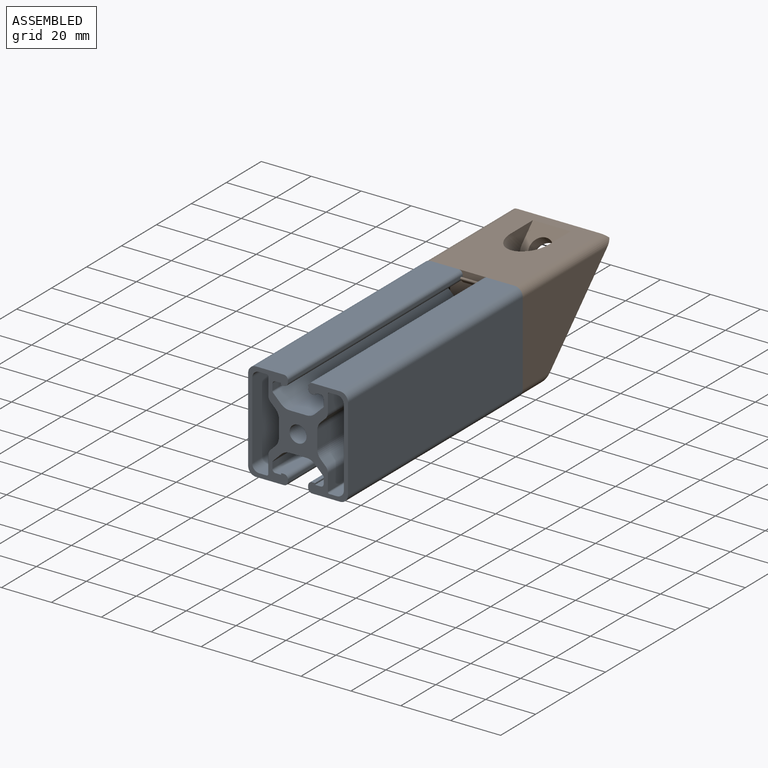
[diagram: assembled view]
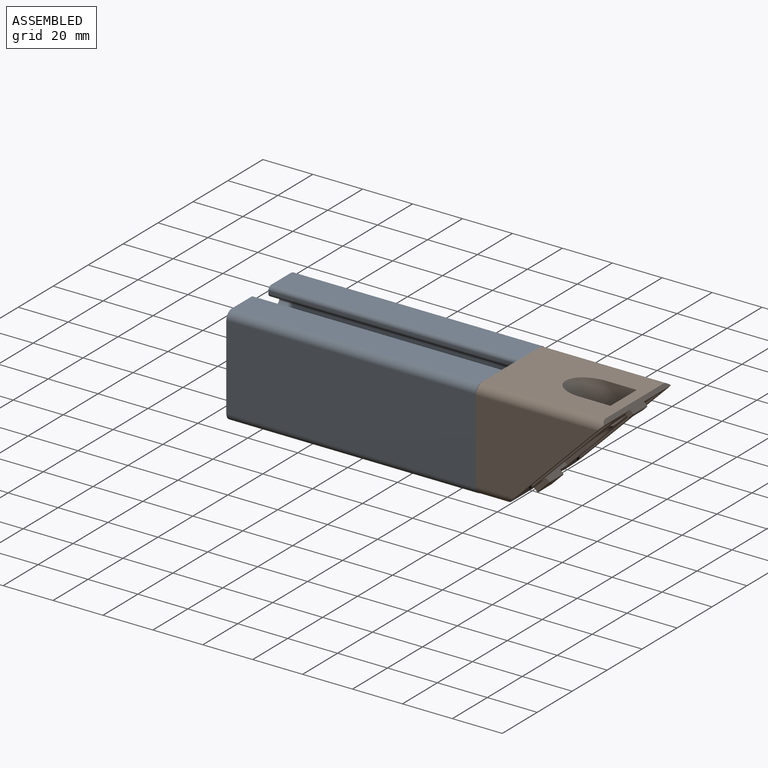
[diagram: assembled view, second angle]
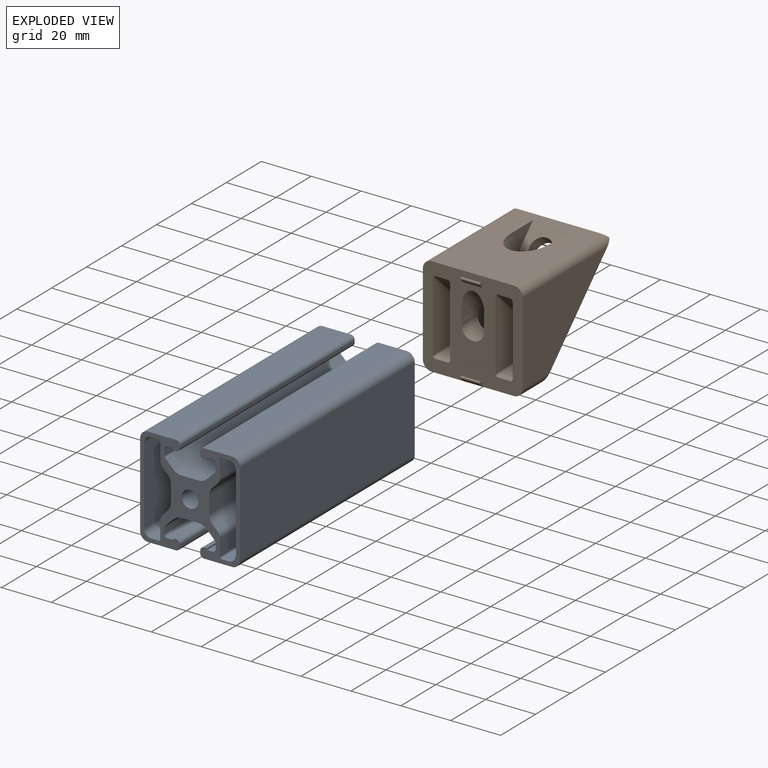
[diagram: exploded view]
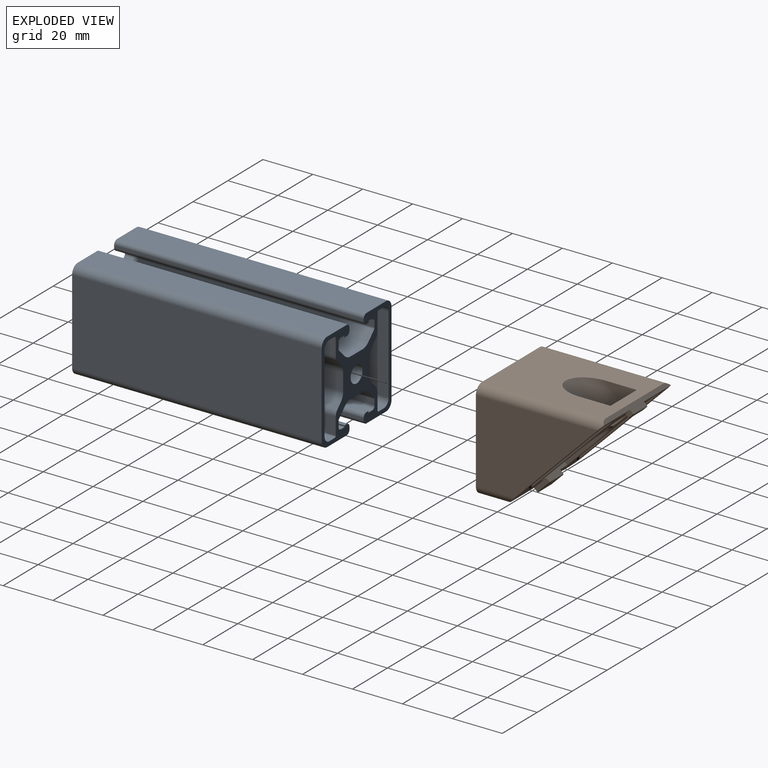
[diagram: exploded view, second angle]
ASSEMBLY  parts=2 mates=3
PART A: 91 faces, bbox 40x40x100 mm
  f0: plane 100x0.76mm, normal (1,0,0), area 76.2mm2, adj f1,f55,f56,f57
  f1: plane 100x2.12mm, normal (0,1,0), area 212.1mm2, adj f0,f2,f56,f57
  f2: cylinder r=1.27mm len=100mm, axis (0,0,1), area 199.5mm2, adj f1,f3,f56,f57
  f3: plane 100x2.48mm, normal (-1,0,0), area 248.4mm2, adj f2,f4,f56,f57
  f4: cylinder r=0.89mm len=100mm, axis (0,0,1), area 69.9mm2, adj f3,f5,f56,f57
  f5: plane 100x3.25mm, normal (-0.71,-0.71,0), area 459.3mm2, adj f4,f6,f56,f57
  f6: cylinder r=4.75mm len=100mm, axis (0,0,1), area 370.7mm2, adj f5,f7,f56,f57
  f7: plane 100x6.86mm, normal (0,-1,0), area 686.2mm2, adj f6,f8,f56,f57
  f8: cylinder r=4.75mm len=100mm, axis (0,0,1), area 370.7mm2, adj f7,f9,f56,f57
  f9: plane 100x3.25mm, normal (0.71,-0.71,0), area 459.3mm2, adj f8,f10,f56,f57
  f10: cylinder r=0.89mm len=100mm, axis (0,0,1), area 69.9mm2, adj f9,f11,f56,f57
  f11: plane 100x2.48mm, normal (1,0,0), area 248.4mm2, adj f10,f12,f56,f57
  f12: cylinder r=1.27mm len=100mm, axis (0,0,1), area 199.5mm2, adj f11,f13,f56,f57
  f13: plane 100x2.12mm, normal (0,1,0), area 212.1mm2, adj f12,f14,f56,f57
  f14: plane 100x0.76mm, normal (-1,0,0), area 76.2mm2, adj f13,f15,f56,f57
  f15: plane 100x1.26mm, normal (0,1,0), area 125.9mm2, adj f14,f16,f56,f57
  f16: cylinder r=1.57mm len=100mm, axis (0,0,1), area 247.4mm2, adj f15,f17,f56,f57
  f17: plane 100x0.91mm, normal (1,0,0), area 91mm2, adj f16,f18,f56,f57
  f18: cylinder r=1.57mm len=100mm, axis (0,0,1), area 247.4mm2, adj f17,f19,f56,f57
  f19: plane 100x11.19mm, normal (0,-1,0), area 1119mm2, adj f18,f20,f56,f57
  f20: cylinder r=3.17mm len=100mm, axis (0,0,1), area 498.7mm2, adj f19,f21,f56,f57
  f21: plane 100x33.65mm, normal (-1,0,0), area 3365mm2, adj f20,f22,f56,f57
  f22: cylinder r=3.17mm len=100mm, axis (0,0,1), area 498.7mm2, adj f21,f23,f56,f57
  f23: plane 100x11.19mm, normal (0,1,0), area 1119mm2, adj f22,f24,f56,f57
  f24: cylinder r=1.57mm len=100mm, axis (0,0,1), area 247.4mm2, adj f23,f25,f56,f57
  f25: plane 100x0.91mm, normal (1,0,0), area 91mm2, adj f24,f26,f56,f57
  f26: cylinder r=1.57mm len=100mm, axis (0,0,1), area 247.4mm2, adj f25,f27,f56,f57
  f27: plane 100x1.14mm, normal (0,-1,0), area 113.7mm2, adj f26,f28,f56,f57
  f28: plane 100x0.62mm, normal (-1,0,0), area 62.3mm2, adj f27,f29,f56,f57
  f29: plane 100x2.24mm, normal (0,-1,0), area 224.3mm2, adj f28,f30,f56,f57
  f30: cylinder r=1.27mm len=100mm, axis (0,0,1), area 199.5mm2, adj f29,f31,f56,f57
  f31: plane 100x2.31mm, normal (1,0,0), area 231.3mm2, adj f30,f32,f56,f57
  f32: cylinder r=0.89mm len=100mm, axis (0,0,1), area 67.5mm2, adj f31,f33,f56,f57
  f33: plane 100x3.29mm, normal (0.71,0.71,0), area 464.8mm2, adj f32,f34,f56,f57
  f34: cylinder r=4.75mm len=100mm, axis (0,0,1), area 370.5mm2, adj f33,f35,f56,f57
  f35: plane 100x6.83mm, normal (0,1,0), area 682.8mm2, adj f34,f36,f56,f57
  f36: cylinder r=4.75mm len=100mm, axis (0,0,1), area 370.5mm2, adj f35,f37,f56,f57
  f37: plane 100x3.29mm, normal (-0.71,0.71,0), area 464.8mm2, adj f36,f38,f56,f57
  f38: cylinder r=0.89mm len=100mm, axis (0,0,1), area 67.5mm2, adj f37,f39,f56,f57
  f39: plane 100x2.31mm, normal (-1,0,0), area 231.3mm2, adj f38,f40,f56,f57
  f40: cylinder r=1.27mm len=100mm, axis (0,0,1), area 199.5mm2, adj f39,f41,f56,f57
  f41: plane 100x2.24mm, normal (0,-1,0), area 224.3mm2, adj f40,f42,f56,f57
  f42: plane 100x0.62mm, normal (1,0,0), area 62.3mm2, adj f41,f43,f56,f57
  f43: plane 100x1.14mm, normal (0,-1,0), area 113.7mm2, adj f42,f44,f56,f57
  f44: cylinder r=1.57mm len=100mm, axis (0,0,1), area 247.4mm2, adj f43,f45,f56,f57
  f45: plane 100x0.91mm, normal (-1,0,0), area 91mm2, adj f44,f46,f56,f57
  f46: cylinder r=1.57mm len=100mm, axis (0,0,1), area 247.4mm2, adj f45,f47,f56,f57
  f47: plane 100x11.19mm, normal (0,1,0), area 1119mm2, adj f46,f48,f56,f57
  f48: cylinder r=3.17mm len=100mm, axis (0,0,1), area 498.7mm2, adj f47,f49,f56,f57
  f49: plane 100x33.65mm, normal (1,0,0), area 3365mm2, adj f48,f50,f56,f57
  f50: cylinder r=3.17mm len=100mm, axis (0,0,1), area 498.7mm2, adj f49,f51,f56,f57
  f51: plane 100x11.19mm, normal (0,-1,0), area 1119mm2, adj f50,f52,f56,f57
  f52: cylinder r=1.57mm len=100mm, axis (0,0,1), area 247.4mm2, adj f51,f53,f56,f57
  f53: plane 100x0.91mm, normal (-1,0,0), area 91mm2, adj f52,f54,f56,f57
  f54: cylinder r=1.57mm len=100mm, axis (0,0,1), area 247.4mm2, adj f53,f55,f56,f57
  f55: plane 100x1.26mm, normal (0,1,0), area 125.9mm2, adj f0,f54,f56,f57
  f56: plane 40x40mm, normal (0,0,-1), area 598.2mm2, adj f0,f1,f2,f3,f4,f5,f6,f7
  f57: plane 40x40mm, normal (0,0,1), area 598.2mm2, adj f0,f1,f2,f3,f4,f5,f6,f7
  f58: cylinder r=0.64mm len=100mm, axis (0,0,1), area 98.5mm2, adj f56,f57,f59,f73
  f59: plane 100x2.99mm, normal (0,1,0), area 299.3mm2, adj f56,f57,f58,f60
  f60: cylinder r=2.79mm len=100mm, axis (0,0,1), area 438.6mm2, adj f56,f57,f59,f61
  f61: plane 100x31.12mm, normal (1,0,0), area 3111.5mm2, adj f56,f57,f60,f62
  f62: cylinder r=2.79mm len=100mm, axis (0,0,1), area 438.6mm2, adj f56,f57,f61,f63
  f63: plane 100x2.99mm, normal (0,-1,0), area 299.1mm2, adj f56,f57,f62,f64
  f64: cylinder r=0.64mm len=100mm, axis (0,0,1), area 98.7mm2, adj f56,f57,f63,f65
  f65: plane 100x6.77mm, normal (-1,0,0), area 676.6mm2, adj f56,f57,f64,f66
  f66: cylinder r=3.17mm len=100mm, axis (0,0,1), area 258.6mm2, adj f56,f57,f65,f67
  f67: plane 100x1.94mm, normal (-0.71,-0.71,0), area 273.7mm2, adj f56,f57,f66,f68
  f68: cylinder r=4.75mm len=100mm, axis (0,0,1), area 375.6mm2, adj f56,f57,f67,f69
  f69: plane 100x6.81mm, normal (-1,0,0), area 680.6mm2, adj f56,f57,f68,f70
  f70: cylinder r=4.75mm len=100mm, axis (0,0,1), area 366.4mm2, adj f56,f57,f69,f71
  f71: plane 100x1.94mm, normal (-0.71,0.71,0), area 273.4mm2, adj f56,f57,f70,f72
  f72: cylinder r=3.17mm len=100mm, axis (0,0,1), area 247.2mm2, adj f56,f57,f71,f73
  f73: plane 100x6.77mm, normal (-1,0,0), area 676.6mm2, adj f56,f57,f58,f72
  f74: cylinder r=3.17mm len=100mm, axis (0,0,1), area 247.2mm2, adj f56,f57,f75,f89
  f75: plane 100x1.94mm, normal (0.71,0.71,0), area 273.4mm2, adj f56,f57,f74,f76
  f76: cylinder r=4.75mm len=100mm, axis (0,0,1), area 366.4mm2, adj f56,f57,f75,f77
  f77: plane 100x6.81mm, normal (1,0,0), area 680.6mm2, adj f56,f57,f76,f78
  f78: cylinder r=4.75mm len=100mm, axis (0,0,1), area 375.6mm2, adj f56,f57,f77,f79
  f79: plane 100x1.94mm, normal (0.71,-0.71,0), area 273.7mm2, adj f56,f57,f78,f80
  f80: cylinder r=3.17mm len=100mm, axis (0,0,1), area 258.6mm2, adj f56,f57,f79,f81
  f81: plane 100x6.77mm, normal (1,0,0), area 676.6mm2, adj f56,f57,f80,f82
  f82: cylinder r=0.64mm len=100mm, axis (0,0,1), area 98.7mm2, adj f56,f57,f81,f83
  f83: plane 100x2.99mm, normal (0,-1,0), area 299.1mm2, adj f56,f57,f82,f84
  f84: cylinder r=2.79mm len=100mm, axis (0,0,1), area 438.6mm2, adj f56,f57,f83,f85
  f85: plane 100x31.12mm, normal (-1,0,0), area 3111.5mm2, adj f56,f57,f84,f86
  f86: cylinder r=2.79mm len=100mm, axis (0,0,1), area 438.6mm2, adj f56,f57,f85,f87
  f87: plane 100x2.99mm, normal (0,1,0), area 299.3mm2, adj f56,f57,f86,f88
  f88: cylinder r=0.64mm len=100mm, axis (0,0,1), area 98.5mm2, adj f56,f57,f87,f89
  f89: plane 100x6.77mm, normal (1,0,0), area 676.6mm2, adj f56,f57,f74,f88
  f90: cylinder r=3.4mm len=100mm, axis (0,0,1), area 2136.3mm2, adj f56,f57
PART B: 141 faces, bbox 42x56x48.6 mm
  f0: cylinder r=1mm len=30.3mm, axis (0,-1,0), area 46.8mm2, adj f1,f5,f9,f105
  f1: torus R=2mm, axis (1,0,0), area 6.5mm2, adj f0,f2,f4,f9
  f2: cylinder r=1mm len=30.3mm, axis (0,0,-1), area 46.8mm2, adj f1,f3,f9,f105
  f3: plane 30.3x3.9mm, normal (0,1,0), area 118.2mm2, adj f2,f4,f6,f105
  f4: cylinder r=3mm len=3.9mm, axis (-1,0,0), area 18.4mm2, adj f1,f3,f5,f7
  f5: plane 30.3x3.9mm, normal (0,0,-1), area 118.2mm2, adj f0,f4,f8,f105
  f6: cylinder r=1mm len=30.3mm, axis (0,0,1), area 46.8mm2, adj f3,f7,f25,f105
  f7: torus R=2mm, axis (-1,0,0), area 6.5mm2, adj f4,f6,f8,f25
  f8: cylinder r=1mm len=30.3mm, axis (0,1,0), area 46.8mm2, adj f5,f7,f25,f105
  f9: plane 31.3x31.3mm, normal (1,0,0), area 489mm2, adj f0,f1,f2,f105
  f10: bspline ~1.5x1.44mm, area 2.7mm2, adj f12,f13,f14,f19
  f11: bspline ~1.5x1.44mm, area 2.7mm2, adj f12,f16,f23,f26
  f12: cylinder r=1.5mm len=4.11mm, axis (-1,0,0), area 9.3mm2, adj f10,f11,f15,f24
  f13: plane 27.65x11.34mm, normal (-1,-0.04,0), area 248.3mm2, adj f10,f14,f19,f20,f60
  f14: cylinder r=1mm len=10.91mm, axis (0.04,-1,-0.05), area 17.1mm2, adj f10,f13,f15,f60
  f15: plane 10.88x4.9mm, normal (0,-0.05,1), area 49.1mm2, adj f12,f14,f16,f60
  f16: cylinder r=1mm len=10.91mm, axis (-0.04,-1,-0.05), area 17.1mm2, adj f11,f15,f26,f60
  f17: sphere r=1mm, area 0.6mm2, adj f21,f22,f23
  f18: sphere r=1mm, area 0.6mm2, adj f19,f20,f21
  f19: cylinder r=1mm len=15.65mm, axis (0,0,-1), area 24mm2, adj f10,f13,f18,f24
  f20: cylinder r=1mm len=12.65mm, axis (0.03,-0.72,0.69), area 25mm2, adj f13,f18,f27,f60
  f21: cylinder r=1mm len=4.07mm, axis (1,0,0), area 3.3mm2, adj f17,f18,f24,f27
  f22: cylinder r=1mm len=12.65mm, axis (-0.03,-0.72,0.69), area 25mm2, adj f17,f26,f27,f60
  f23: cylinder r=1mm len=15.65mm, axis (0,0,1), area 24mm2, adj f11,f17,f24,f26
  f24: plane 15.65x4.07mm, normal (0,-1,0), area 63.7mm2, adj f12,f19,f21,f23
  f25: plane 31.3x31.3mm, normal (-1,0,0), area 489mm2, adj f6,f7,f8,f105
  f26: plane 27.65x11.34mm, normal (1,-0.04,0), area 248.3mm2, adj f11,f16,f22,f23,f60
  f27: plane 11.99x11.53mm, normal (0,-0.69,-0.72), area 75mm2, adj f20,f21,f22,f60
  f28: cylinder r=1mm len=30.3mm, axis (0,-1,0), area 46.8mm2, adj f29,f31,f37,f105
  f29: torus R=2mm, axis (-1,0,0), area 6.5mm2, adj f28,f30,f31,f36
  f30: cylinder r=1mm len=30.3mm, axis (0,0,-1), area 46.8mm2, adj f29,f31,f76,f105
  f31: plane 31.3x31.3mm, normal (-1,0,0), area 489mm2, adj f28,f29,f30,f105
  f32: cylinder r=1mm len=30.3mm, axis (0,0,1), area 46.8mm2, adj f33,f35,f76,f105
  f33: torus R=2mm, axis (1,0,0), area 6.5mm2, adj f32,f34,f35,f36
  f34: cylinder r=1mm len=30.3mm, axis (0,1,0), area 46.8mm2, adj f33,f35,f37,f105
  f35: plane 31.3x31.3mm, normal (1,0,0), area 489mm2, adj f32,f33,f34,f105
  f36: cylinder r=3mm len=3.9mm, axis (1,0,0), area 18.4mm2, adj f29,f33,f37,f76
  f37: plane 30.3x3.9mm, normal (0,0,-1), area 118.2mm2, adj f28,f34,f36,f105
  f38: bspline ~1.5x1.44mm, area 2.7mm2, adj f40,f41,f42,f50
  f39: bspline ~1.5x1.44mm, area 2.7mm2, adj f40,f44,f47,f54
  f40: cylinder r=1.5mm len=4.11mm, axis (1,0,0), area 9.3mm2, adj f38,f39,f43,f53
  f41: plane 27.65x11.34mm, normal (-1,-0.04,0), area 248.3mm2, adj f38,f42,f50,f51,f60
  f42: cylinder r=1mm len=10.91mm, axis (0.04,-1,-0.05), area 17.1mm2, adj f38,f41,f43,f60
  f43: plane 10.88x4.9mm, normal (0,-0.05,1), area 49.1mm2, adj f40,f42,f44,f60
  f44: cylinder r=1mm len=10.91mm, axis (-0.04,-1,-0.05), area 17.1mm2, adj f39,f43,f54,f60
  f45: sphere r=1mm, area 0.6mm2, adj f48,f50,f51
  f46: sphere r=1mm, area 0.6mm2, adj f47,f48,f49
  f47: cylinder r=1mm len=15.65mm, axis (0,0,-1), area 24mm2, adj f39,f46,f53,f54
  f48: cylinder r=1mm len=4.07mm, axis (-1,0,0), area 3.3mm2, adj f45,f46,f52,f53
  f49: cylinder r=1mm len=12.65mm, axis (-0.03,-0.72,0.69), area 25mm2, adj f46,f52,f54,f60
  f50: cylinder r=1mm len=15.65mm, axis (0,0,1), area 24mm2, adj f38,f41,f45,f53
  f51: cylinder r=1mm len=12.65mm, axis (0.03,-0.72,0.69), area 25mm2, adj f41,f45,f52,f60
  f52: plane 11.99x11.53mm, normal (0,-0.69,-0.72), area 75mm2, adj f48,f49,f51,f60
  f53: plane 15.65x4.07mm, normal (0,-1,0), area 63.7mm2, adj f40,f47,f48,f50
  f54: plane 27.65x11.34mm, normal (1,-0.04,0), area 248.3mm2, adj f39,f44,f47,f49,f60
  f55: bspline ~9.95x7.57mm, area 24.2mm2, adj f60,f67,f70,f75
  f56: bspline ~5x3.85mm, area 9.6mm2, adj f57,f61,f64,f75,f79
  f57: bspline ~11.4x9.2mm, area 81.9mm2, adj f56,f59,f60,f61,f62,f79
  f58: bspline ~9.95x7.57mm, area 24.2mm2, adj f60,f65,f66,f75
  f59: bspline ~4.92x3.85mm, area 9.6mm2, adj f57,f62,f63,f75,f79
  f60: plane 40.41x40.41mm, normal (0,-1,0), area 1012.2mm2, adj f13,f14,f15,f16,f20,f22,f26,f27
  f61: cylinder r=4.5mm len=10.69mm, axis (0,-0.71,0.71), area 39mm2, adj f56,f57,f70
  f62: cylinder r=4.5mm len=10.7mm, axis (0,-0.71,0.71), area 39.2mm2, adj f57,f59,f66
  f63: cylinder r=4.5mm len=1.87mm, axis (0,-0.71,0.71), area 0.4mm2, adj f59,f65,f75
  f64: cylinder r=4.5mm len=1.87mm, axis (0,-0.71,0.71), area 0.4mm2, adj f56,f67,f75
  f65: plane 1.62x1.62mm, normal (0,0.71,0.71), area 0mm2, adj f58,f63,f75
  f66: plane 5.9x5.9mm, normal (0,0.71,0.71), area 0.3mm2, adj f58,f62
  f67: plane 1.62x1.62mm, normal (0,0.71,0.71), area 0mm2, adj f55,f64,f75
  f68: plane 0.22x0.22mm, normal (0,-0.71,0.71), area 0mm2, adj f69,f71,f75
  f69: plane 0.53x0.53mm, normal (0,0.71,0.71), area 0mm2, adj f68,f71,f75
  f70: plane 5.9x5.9mm, normal (0,0.71,0.71), area 0.3mm2, adj f55,f61
  f71: cylinder r=4.5mm len=0.75mm, axis (0,-0.71,0.71), area 0.1mm2, adj f68,f69,f75
  f72: cylinder r=4.5mm len=0.75mm, axis (0,-0.71,0.71), area 0.1mm2, adj f73,f74,f75
  f73: plane 0.22x0.22mm, normal (0,-0.71,0.71), area 0mm2, adj f72,f74,f75
  f74: plane 0.53x0.53mm, normal (0,0.71,0.71), area 0mm2, adj f72,f73,f75
  f75: cylinder r=4.5mm len=9.2mm, axis (0,-1,0), area 141.7mm2, adj f55,f56,f58,f59,f60,f63,f64,f65
  f76: plane 30.3x3.9mm, normal (0,1,0), area 118.2mm2, adj f30,f32,f36,f105
  f77: cylinder r=7.75mm len=30.27mm, axis (0,1,0), area 661.7mm2, adj f78,f79,f80,f85,f105
  f78: plane 22.8x14.84mm, normal (1,0,0), area 196.5mm2, adj f77,f79,f99,f105
  f79: plane 16.08x15.21mm, normal (0,1,0), area 137.3mm2, adj f56,f57,f59,f75,f77,f78,f80,f99
  f80: plane 22.8x14.84mm, normal (-1,0,0), area 196.5mm2, adj f77,f79,f99,f105
  f81: plane 12.61x6.31mm, normal (1,0,0), area 39.8mm2, adj f82,f84,f107
  f82: plane 15.1x11.64mm, normal (0,-0.71,0.71), area 160.6mm2, adj f81,f83,f84,f85,f107
  f83: plane 12.61x6.31mm, normal (-1,0,0), area 39.8mm2, adj f82,f84,f107
  f84: cylinder r=7.55mm len=17mm, axis (0,-0.71,0.71), area 325.5mm2, adj f81,f82,f83,f107
  f85: cylinder r=4.5mm len=9.76mm, axis (0,0.71,-0.71), area 135.7mm2, adj f77,f82,f105
  f86: plane 2.97x2.97mm, normal (-1,0,0), area 4.3mm2, adj f105,f117,f119,f120
  f87: plane 7.3x1.77mm, normal (0,0.71,-0.71), area 18.3mm2, adj f120,f121,f125,f126
  f88: plane 7.3x1.2mm, normal (0,-0.71,-0.71), area 12.4mm2, adj f105,f117,f121,f122
  f89: plane 2.97x2.97mm, normal (1,0,0), area 4.3mm2, adj f105,f122,f126,f128
  f90: plane 2.27x1.56mm, normal (-1,0,0), area 1.9mm2, adj f60,f91,f92,f115,f116
  f91: plane 7.9x1.41mm, normal (0,-0.71,-0.71), area 15.8mm2, adj f90,f93,f106,f115
  f92: plane 7.9x0.71mm, normal (0,0.71,0.71), area 7.9mm2, adj f60,f90,f93,f116
  f93: plane 2.27x1.56mm, normal (1,0,0), area 1.9mm2, adj f60,f91,f92,f115,f116
  f94: plane 2.27x1.56mm, normal (-1,0,0), area 1.9mm2, adj f60,f95,f96,f113,f114
  f95: plane 7.9x1.41mm, normal (0,-0.71,-0.71), area 15.8mm2, adj f60,f94,f97,f113
  f96: plane 7.9x0.71mm, normal (0,0.71,0.71), area 7.9mm2, adj f60,f94,f97,f114
  f97: plane 2.27x1.56mm, normal (1,0,0), area 1.9mm2, adj f60,f95,f96,f113,f114
  f98: plane 5.94x5.94mm, normal (-1,0,0), area 11.4mm2, adj f105,f131,f137,f140
  f99: plane 15.5x9.16mm, normal (0,0.71,0.71), area 186.9mm2, adj f78,f79,f80,f105,f134,f138,f140
  f100: plane 7.3x4.74mm, normal (0,0.71,-0.71), area 48.9mm2, adj f132,f133,f137,f138
  f101: plane 7.3x1.2mm, normal (0,-0.71,-0.71), area 12.4mm2, adj f106,f129,f131,f132
  f102: plane 5.94x5.94mm, normal (1,0,0), area 11.4mm2, adj f105,f129,f133,f134
  f103: plane 48.5x33mm, normal (-1,0,0), area 1056mm2, adj f60,f105,f109,f110
  f104: plane 38.96x3.05mm, normal (0,0.71,0.71), area 77.3mm2, adj f105,f107,f109,f112,f119,f125,f128
  f105: plane 41.95x40.7mm, normal (0,0.71,-0.71), area 1027.8mm2, adj f0,f2,f3,f5,f6,f8,f9,f25
  f106: plane 33x12mm, normal (0,0,-1), area 396mm2, adj f60,f91,f101,f105,f110,f111
  f107: plane 49.5x33mm, normal (0,0,1), area 1316.4mm2, adj f60,f81,f82,f83,f84,f104,f109,f112
  f108: plane 48.5x33mm, normal (1,0,0), area 1056mm2, adj f60,f105,f111,f112
  f109: cylinder r=3.5mm len=50.75mm, axis (0,1,0), area 274.4mm2, adj f60,f103,f104,f105,f107
  f110: cylinder r=3.5mm len=15.5mm, axis (0,-1,0), area 75.6mm2, adj f60,f103,f105,f106
  f111: cylinder r=3.5mm len=15.5mm, axis (0,1,0), area 75.6mm2, adj f60,f105,f106,f108
  f112: cylinder r=3.5mm len=50.75mm, axis (0,-1,0), area 274.4mm2, adj f60,f104,f105,f107,f108
  f113: cylinder r=0.5mm len=7.9mm, axis (1,0,0), area 6.2mm2, adj f94,f95,f97,f114
  f114: cylinder r=0.5mm len=7.9mm, axis (1,0,0), area 6.2mm2, adj f94,f96,f97,f113
  f115: cylinder r=0.5mm len=7.9mm, axis (1,0,0), area 6.2mm2, adj f90,f91,f93,f116
  f116: cylinder r=0.5mm len=7.9mm, axis (1,0,0), area 6.2mm2, adj f90,f92,f93,f115
  f117: cylinder r=0.3mm len=1.41mm, axis (0,-0.71,0.71), area 0.8mm2, adj f86,f88,f105,f118
  f118: sphere r=0.3mm, area 0.2mm2, adj f117,f120,f121
  f119: cylinder r=0.3mm len=1.41mm, axis (0,0.71,-0.71), area 0.8mm2, adj f86,f104,f105,f123
  f120: cylinder r=0.3mm len=1.98mm, axis (0,-0.71,-0.71), area 1.2mm2, adj f86,f87,f118,f123
  f121: cylinder r=0.3mm len=7.3mm, axis (1,0,0), area 3.4mm2, adj f87,f88,f118,f124
  f122: cylinder r=0.3mm len=1.41mm, axis (0,0.71,-0.71), area 0.8mm2, adj f88,f89,f105,f124
  f123: sphere r=0.3mm, area 0.1mm2, adj f119,f120,f125
  f124: sphere r=0.3mm, area 0.1mm2, adj f121,f122,f126
  f125: cylinder r=0.3mm len=7.3mm, axis (1,0,0), area 3.4mm2, adj f87,f104,f123,f127
  f126: cylinder r=0.3mm len=1.98mm, axis (0,0.71,0.71), area 1.2mm2, adj f87,f89,f124,f127
  f127: sphere r=0.3mm, area 0.1mm2, adj f125,f126,f128
  f128: cylinder r=0.3mm len=1.41mm, axis (0,-0.71,0.71), area 0.8mm2, adj f89,f104,f105,f127
  f129: cylinder r=0.3mm len=1.41mm, axis (0,0.71,-0.71), area 0.8mm2, adj f101,f102,f105,f130
  f130: sphere r=0.3mm, area 0.1mm2, adj f129,f132,f133
  f131: cylinder r=0.3mm len=1.41mm, axis (0,-0.71,0.71), area 0.8mm2, adj f98,f101,f105,f135
  f132: cylinder r=0.3mm len=7.3mm, axis (1,0,0), area 3.4mm2, adj f100,f101,f130,f135
  f133: cylinder r=0.3mm len=4.95mm, axis (0,0.71,0.71), area 3.2mm2, adj f100,f102,f130,f136
  f134: cylinder r=0.3mm len=1.41mm, axis (0,-0.71,0.71), area 0.8mm2, adj f99,f102,f105,f136
  f135: sphere r=0.3mm, area 0.2mm2, adj f131,f132,f137
  f136: sphere r=0.3mm, area 0.1mm2, adj f133,f134,f138
  f137: cylinder r=0.3mm len=4.95mm, axis (0,-0.71,-0.71), area 3.2mm2, adj f98,f100,f135,f139
  f138: cylinder r=0.3mm len=7.3mm, axis (1,0,0), area 3.4mm2, adj f99,f100,f136,f139
  f139: sphere r=0.3mm, area 0.1mm2, adj f137,f138,f140
  f140: cylinder r=0.3mm len=1.41mm, axis (0,0.71,-0.71), area 0.8mm2, adj f98,f99,f105,f139
PLACE A rot(axis=(-1,0,0),90deg) t=(-39.45,-8.21,-37.72)mm
PLACE B rot(axis=(1,0,0),0deg) t=(-39.45,-8.21,-17.72)mm
MATE cylindrical B.f75 <-> A.f90  axis (0,-1,0) through (-39.45,0.99,-37.72)mm
MATE parallel A.f51 <-> B.f107  axis (0,0,1) through (-28.22,-58.21,-17.72)mm
MATE planar B.f60 <-> A.f57  axis (0,-1,0) through (-39.45,-8.21,-38.31)mm
